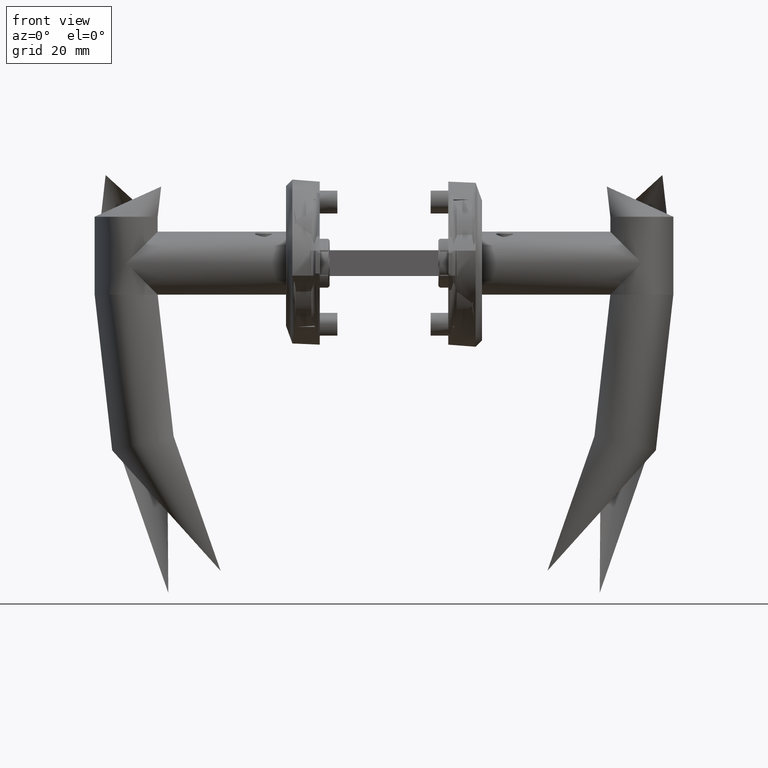
[diagram: clean part render]
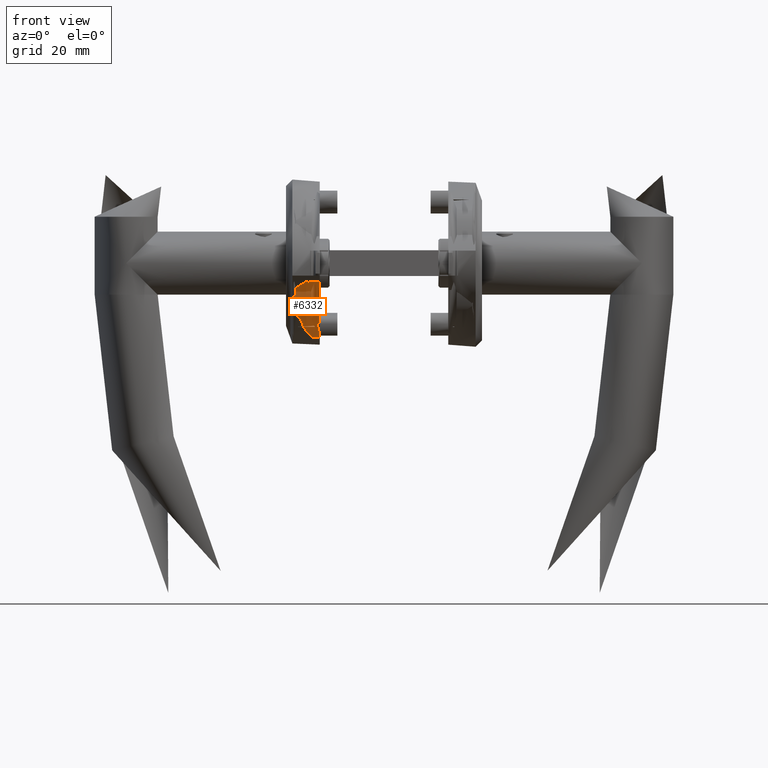
[diagram: same view with one face highlighted and labeled with its STEP entity id]
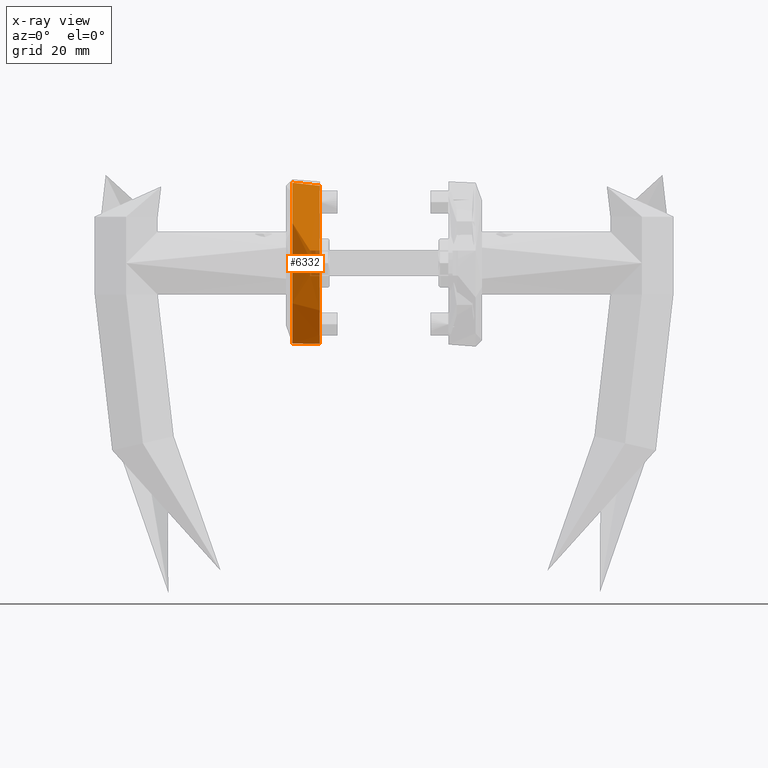
[diagram: x-ray of the same camera — body ghosted, the highlighted face saturated]
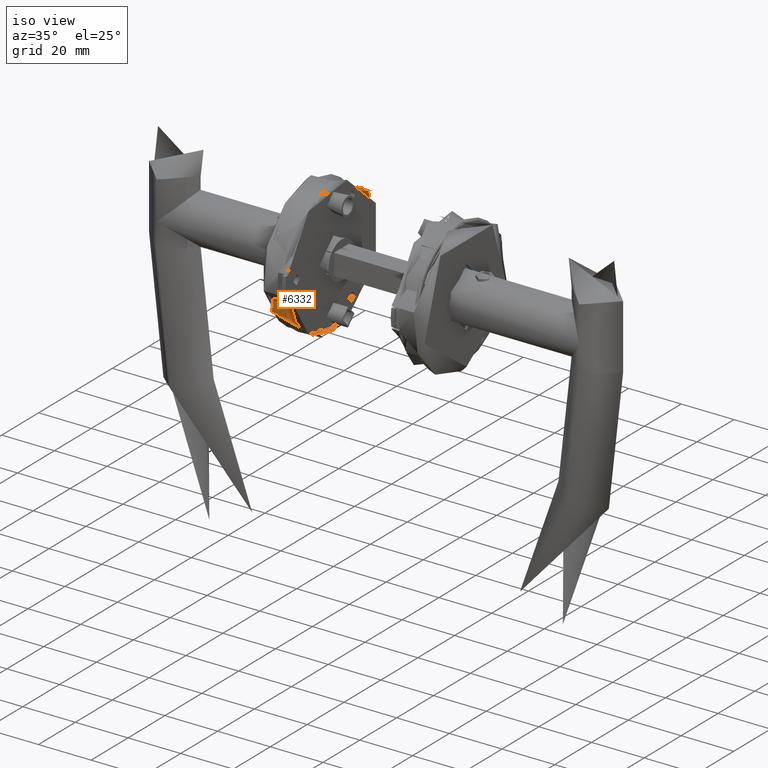
[diagram: same view with one face highlighted and labeled with its STEP entity id]
A machine part, front view. The second image highlights one B-rep face of the part: STEP entity #6332.
The next image is the same camera in x-ray: the body ghosted, the highlighted face saturated — about 6% of this face is hidden behind the body in this view.
A second angle (iso view) of the same face is appended — the face is thin or edge-on in the first view.
In plain terms, the highlighted cylindrical surface (bore or boss wall) has radius 25 mm, axis along (1, 0, -0).
Its self-contained STEP definition (entity closure, byte-faithful):
#157 = VERTEX_POINT ( 'NONE', #3782 ) ;
#332 = VERTEX_POINT ( 'NONE', #8193 ) ;
#626 = VERTEX_POINT ( 'NONE', #13713 ) ;
#1017 = EDGE_CURVE ( 'NONE', #6821, #332, #10469, .T. ) ;
#1563 = CARTESIAN_POINT ( 'NONE',  ( 0.0000000000000000000, 0.0000000000000000000, 8.500000000000000000 ) ) ;
#2647 = EDGE_CURVE ( 'NONE', #157, #157, #5471, .T. ) ;
#3782 = CARTESIAN_POINT ( 'NONE',  ( -25.00000000000000000, 0.0000000000000000000, 8.500000000000000000 ) ) ;
#3928 = ORIENTED_EDGE ( 'NONE', *, *, #2647, .F. ) ;
#4015 = LINE ( 'NONE', #17573, #10161 ) ;
#4831 = EDGE_LOOP ( 'NONE', ( #6049, #8491, #11698, #14234 ) ) ;
#4838 = DIRECTION ( 'NONE',  ( 0.0000000000000000000, 0.0000000000000000000, 1.000000000000000000 ) ) ;
#4985 = CARTESIAN_POINT ( 'NONE',  ( 0.0000000000000000000, 0.0000000000000000000, 10.50000000000000000 ) ) ;
#5024 = VECTOR ( 'NONE', #17475, 1000.000000000000000 ) ;
#5471 = CIRCLE ( 'NONE', #18450, 25.00000000000000000 ) ;
#5503 = EDGE_CURVE ( 'NONE', #626, #5626, #4015, .T. ) ;
#5626 = VERTEX_POINT ( 'NONE', #8805 ) ;
#5634 = DIRECTION ( 'NONE',  ( 0.0000000000000000000, 0.0000000000000000000, 1.000000000000000000 ) ) ;
#6049 = ORIENTED_EDGE ( 'NONE', *, *, #1017, .F. ) ;
#6115 = CYLINDRICAL_SURFACE ( 'NONE', #10872, 25.00000000000000000 ) ;
#6169 = CARTESIAN_POINT ( 'NONE',  ( 0.0000000000000000000, 0.0000000000000000000, 2.999999999999998200 ) ) ;
#6332 = ADVANCED_FACE ( 'NONE', ( #13914, #19126 ), #6115, .F. ) ;
#6821 = VERTEX_POINT ( 'NONE', #17159 ) ;
#7835 = DIRECTION ( 'NONE',  ( -0.0000000000000000000, -0.0000000000000000000, -1.000000000000000000 ) ) ;
#8193 = CARTESIAN_POINT ( 'NONE',  ( -3.899999999999999900, -24.69392637876771300, 2.999999999999998200 ) ) ;
#8491 = ORIENTED_EDGE ( 'NONE', *, *, #13287, .F. ) ;
#8805 = CARTESIAN_POINT ( 'NONE',  ( 3.900000000000000400, -24.69392637876771300, -1.734723475976807100E-015 ) ) ;
#9911 = DIRECTION ( 'NONE',  ( -0.0000000000000000000, -0.0000000000000000000, -1.000000000000000000 ) ) ;
#10161 = VECTOR ( 'NONE', #9911, 1000.000000000000000 ) ;
#10193 = CARTESIAN_POINT ( 'NONE',  ( 0.0000000000000000000, 0.0000000000000000000, 0.0000000000000000000 ) ) ;
#10469 = LINE ( 'NONE', #12627, #5024 ) ;
#10841 = DIRECTION ( 'NONE',  ( 1.000000000000000000, 0.0000000000000000000, 0.0000000000000000000 ) ) ;
#10872 = AXIS2_PLACEMENT_3D ( 'NONE', #4985, #7835, #13904 ) ;
#11698 = ORIENTED_EDGE ( 'NONE', *, *, #5503, .F. ) ;
#12344 = CIRCLE ( 'NONE', #13420, 25.00000000000000000 ) ;
#12627 = CARTESIAN_POINT ( 'NONE',  ( -3.899999999999999900, -24.69392637876771300, 10.50000000000000000 ) ) ;
#13272 = CIRCLE ( 'NONE', #15633, 25.00000000000000000 ) ;
#13287 = EDGE_CURVE ( 'NONE', #5626, #6821, #12344, .T. ) ;
#13420 = AXIS2_PLACEMENT_3D ( 'NONE', #10193, #5634, #17730 ) ;
#13677 = DIRECTION ( 'NONE',  ( -0.0000000000000000000, -0.0000000000000000000, -1.000000000000000000 ) ) ;
#13713 = CARTESIAN_POINT ( 'NONE',  ( 3.899999999999998600, -24.69392637876771300, 2.999999999999999100 ) ) ;
#13904 = DIRECTION ( 'NONE',  ( -1.000000000000000000, 0.0000000000000000000, 0.0000000000000000000 ) ) ;
#13914 = FACE_OUTER_BOUND ( 'NONE', #4831, .T. ) ;
#14234 = ORIENTED_EDGE ( 'NONE', *, *, #14397, .F. ) ;
#14397 = EDGE_CURVE ( 'NONE', #332, #626, #13272, .T. ) ;
#15633 = AXIS2_PLACEMENT_3D ( 'NONE', #6169, #4838, #10841 ) ;
#17159 = CARTESIAN_POINT ( 'NONE',  ( -3.899999999999999900, -24.69392637876771700, -1.509254442875150300E-015 ) ) ;
#17475 = DIRECTION ( 'NONE',  ( 0.0000000000000000000, 0.0000000000000000000, 1.000000000000000000 ) ) ;
#17573 = CARTESIAN_POINT ( 'NONE',  ( 3.899999999999998600, -24.69392637876771300, 10.50000000000000000 ) ) ;
#17730 = DIRECTION ( 'NONE',  ( 1.000000000000000000, 0.0000000000000000000, 0.0000000000000000000 ) ) ;
#17907 = EDGE_LOOP ( 'NONE', ( #3928 ) ) ;
#18125 = DIRECTION ( 'NONE',  ( -1.000000000000000000, 0.0000000000000000000, 0.0000000000000000000 ) ) ;
#18450 = AXIS2_PLACEMENT_3D ( 'NONE', #1563, #13677, #18125 ) ;
#19126 = FACE_OUTER_BOUND ( 'NONE', #17907, .T. ) ;